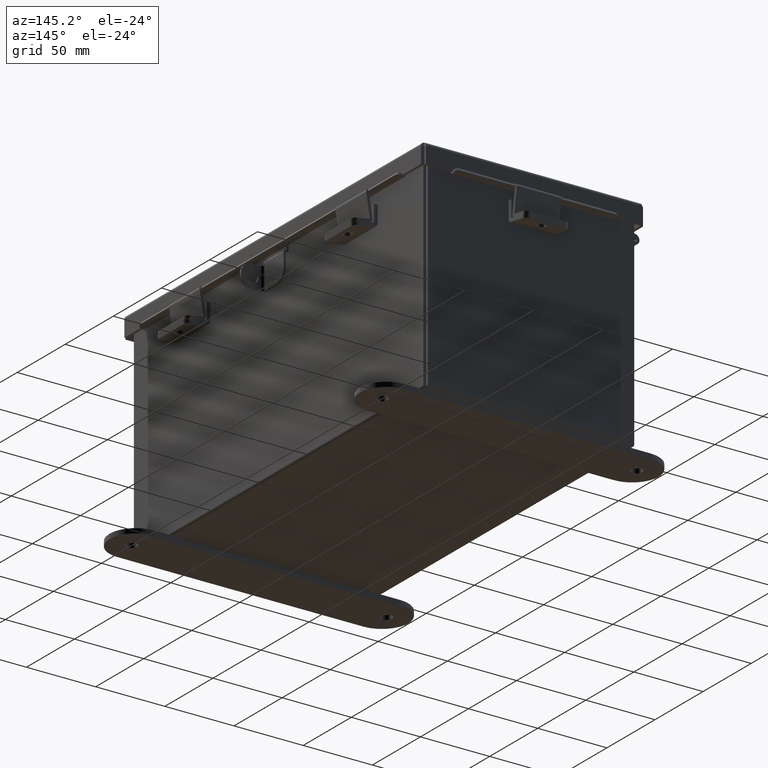
[diagram: clean part render]
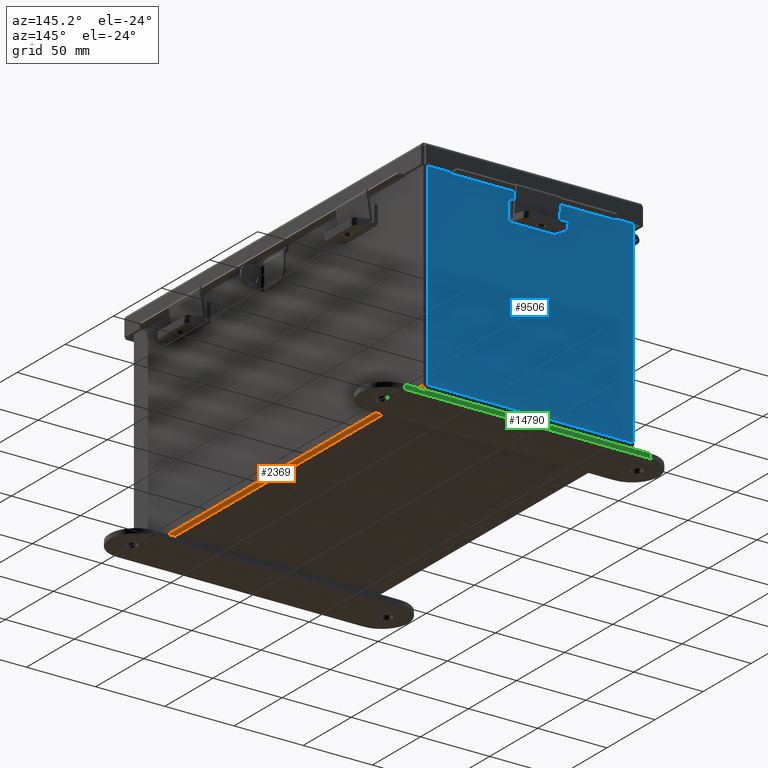
[diagram: same view with three faces highlighted in distinct colors, each labeled with its STEP entity id]
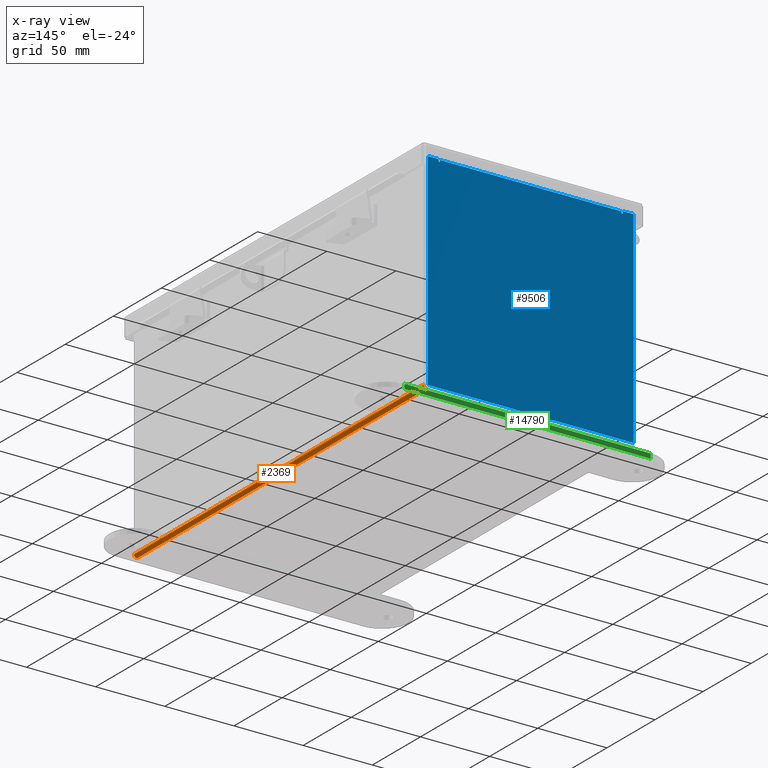
[diagram: x-ray of the same camera — body ghosted, the three highlighted faces saturated]
A machine part, auxiliary view with three faces highlighted in distinct colors.
The next image is the same camera in x-ray (body ghosted, the three faces saturated) — at least one of them is partly hidden behind the body in this view.
Their STEP definitions:

[orange] entity #2369 — the highlighted cylindrical surface (edge-blend (fillet) strip) has radius 2.2276 mm, axis along (0, 1, 0).
#221 = VECTOR ( 'NONE', #623, 39.37007874015748100 ) ;
#623 = DIRECTION ( 'NONE',  ( -0.0000000000000000000, -1.000000000000000000, -8.208677865577646300E-017 ) ) ;
#1322 = CYLINDRICAL_SURFACE ( 'NONE', #5812, 0.08770000000000026400 ) ;
#1637 = DIRECTION ( 'NONE',  ( 1.000000000000000000, 0.0000000000000000000, -3.455694262224952200E-015 ) ) ;
#2092 = CIRCLE ( 'NONE', #14214, 0.08770000000000009700 ) ;
#2136 = ORIENTED_EDGE ( 'NONE', *, *, #14135, .F. ) ;
#2241 = ORIENTED_EDGE ( 'NONE', *, *, #9163, .T. ) ;
#2369 = ADVANCED_FACE ( 'NONE', ( #10514 ), #1322, .T. ) ;
#3066 = LINE ( 'NONE', #5351, #8821 ) ;
#3315 = VERTEX_POINT ( 'NONE', #14533 ) ;
#3961 = ORIENTED_EDGE ( 'NONE', *, *, #11479, .F. ) ;
#5351 = CARTESIAN_POINT ( 'NONE',  ( 2.999999999999999600, -5.925300000000000000, 0.01299999999999984300 ) ) ;
#5717 = VERTEX_POINT ( 'NONE', #10044 ) ;
#5812 = AXIS2_PLACEMENT_3D ( 'NONE', #9698, #13142, #1637 ) ;
#5961 = CARTESIAN_POINT ( 'NONE',  ( 2.912299999999999200, 5.925299999999997300, -0.07469999999999918400 ) ) ;
#6080 = VERTEX_POINT ( 'NONE', #5961 ) ;
#6344 = LINE ( 'NONE', #8620, #221 ) ;
#6470 = DIRECTION ( 'NONE',  ( -0.0000000000000000000, -1.000000000000000000, -8.208677865577646300E-017 ) ) ;
#6500 = DIRECTION ( 'NONE',  ( -1.593066959076850500E-031, -1.000000000000000000, -4.610480471308228800E-017 ) ) ;
#6539 = DIRECTION ( 'NONE',  ( 0.0000000000000000000, 1.000000000000000000, 8.208677865577646300E-017 ) ) ;
#7504 = ORIENTED_EDGE ( 'NONE', *, *, #10396, .F. ) ;
#8620 = CARTESIAN_POINT ( 'NONE',  ( 2.912299999999999200, 5.925300000000000000, -0.07469999999999918400 ) ) ;
#8821 = VECTOR ( 'NONE', #6500, 39.37007874015748100 ) ;
#9151 = AXIS2_PLACEMENT_3D ( 'NONE', #13462, #6539, #14599 ) ;
#9163 = EDGE_CURVE ( 'NONE', #3315, #5717, #3066, .T. ) ;
#9698 = CARTESIAN_POINT ( 'NONE',  ( 2.912299999999999200, 5.925300000000000000, 0.01300000000000091900 ) ) ;
#10044 = CARTESIAN_POINT ( 'NONE',  ( 2.999999999999999600, -5.925300000000000000, 0.01299999999999963700 ) ) ;
#10396 = EDGE_CURVE ( 'NONE', #3315, #6080, #12717, .T. ) ;
#10514 = FACE_OUTER_BOUND ( 'NONE', #13195, .T. ) ;
#11479 = EDGE_CURVE ( 'NONE', #6080, #13508, #6344, .T. ) ;
#12001 = CARTESIAN_POINT ( 'NONE',  ( 2.912299999999999200, -5.925300000000000000, -0.07470000000000000300 ) ) ;
#12717 = CIRCLE ( 'NONE', #9151, 0.08770000000000009700 ) ;
#13142 = DIRECTION ( 'NONE',  ( 0.0000000000000000000, 1.000000000000000000, 8.208677865577646300E-017 ) ) ;
#13195 = EDGE_LOOP ( 'NONE', ( #3961, #7504, #2241, #2136 ) ) ;
#13389 = CARTESIAN_POINT ( 'NONE',  ( 2.912299999999999200, -5.925300000000000000, 0.01299999999999994600 ) ) ;
#13462 = CARTESIAN_POINT ( 'NONE',  ( 2.912299999999999200, 5.925299999999997300, 0.01300000000000091900 ) ) ;
#13508 = VERTEX_POINT ( 'NONE', #12001 ) ;
#14135 = EDGE_CURVE ( 'NONE', #13508, #5717, #2092, .T. ) ;
#14214 = AXIS2_PLACEMENT_3D ( 'NONE', #13389, #6470, #14534 ) ;
#14533 = CARTESIAN_POINT ( 'NONE',  ( 2.999999999999999600, 5.925299999999998200, 0.01300000000000039000 ) ) ;
#14534 = DIRECTION ( 'NONE',  ( 0.0000000000000000000, 0.0000000000000000000, 1.000000000000000000 ) ) ;
#14599 = DIRECTION ( 'NONE',  ( 0.0000000000000000000, 0.0000000000000000000, 1.000000000000000000 ) ) ;

[blue] entity #9506 — the highlighted planar face has unit normal (0, -1, 0).
#25 = CIRCLE ( 'NONE', #11473, 0.01867500000000003900 ) ;
#278 = ORIENTED_EDGE ( 'NONE', *, *, #5135, .F. ) ;
#792 = CARTESIAN_POINT ( 'NONE',  ( -2.582299999999999600, 1.092739197465705300E-015, 2.912299999999999200 ) ) ;
#801 = DIRECTION ( 'NONE',  ( 0.0000000000000000000, 0.0000000000000000000, -1.000000000000000000 ) ) ;
#1093 = DIRECTION ( 'NONE',  ( 0.0000000000000000000, 0.0000000000000000000, 1.000000000000000000 ) ) ;
#1202 = DIRECTION ( 'NONE',  ( -1.000000000000000000, -0.0000000000000000000, -0.0000000000000000000 ) ) ;
#1438 = ORIENTED_EDGE ( 'NONE', *, *, #4869, .T. ) ;
#1672 = CARTESIAN_POINT ( 'NONE',  ( 2.925300000000000500, 0.0000000000000000000, -2.925300000000000000 ) ) ;
#1677 = ORIENTED_EDGE ( 'NONE', *, *, #4958, .F. ) ;
#1883 = VECTOR ( 'NONE', #1093, 39.37007874015748100 ) ;
#1925 = CARTESIAN_POINT ( 'NONE',  ( -2.925299999999999600, 0.0000000000000000000, 2.925300000000000500 ) ) ;
#1932 = VECTOR ( 'NONE', #9576, 39.37007874015748100 ) ;
#2038 = CIRCLE ( 'NONE', #14063, 0.01867500000000003900 ) ;
#2268 = VERTEX_POINT ( 'NONE', #2597 ) ;
#2283 = LINE ( 'NONE', #13026, #1932 ) ;
#2375 = LINE ( 'NONE', #9549, #11204 ) ;
#2384 = LINE ( 'NONE', #10664, #11220 ) ;
#2597 = CARTESIAN_POINT ( 'NONE',  ( -2.582299999999999600, 0.0000000000000000000, 2.874949999999999200 ) ) ;
#2602 = DIRECTION ( 'NONE',  ( 1.000000000000000000, 0.0000000000000000000, 0.0000000000000000000 ) ) ;
#2828 = DIRECTION ( 'NONE',  ( -0.0000000000000000000, 1.000000000000000000, -0.0000000000000000000 ) ) ;
#3064 = DIRECTION ( 'NONE',  ( 1.000000000000000000, 0.0000000000000000000, 0.0000000000000000000 ) ) ;
#3280 = LINE ( 'NONE', #10809, #5992 ) ;
#3542 = DIRECTION ( 'NONE',  ( -0.0000000000000000000, 1.000000000000000000, -0.0000000000000000000 ) ) ;
#3646 = CARTESIAN_POINT ( 'NONE',  ( -2.619649999999999600, 0.0000000000000000000, 2.925300000000000500 ) ) ;
#3652 = ORIENTED_EDGE ( 'NONE', *, *, #5223, .T. ) ;
#3740 = DIRECTION ( 'NONE',  ( -1.085143195099989400E-014, 0.0000000000000000000, -1.000000000000000000 ) ) ;
#3757 = EDGE_CURVE ( 'NONE', #9655, #4105, #2283, .T. ) ;
#3942 = EDGE_CURVE ( 'NONE', #9018, #14757, #11660, .T. ) ;
#4042 = EDGE_LOOP ( 'NONE', ( #278, #4252, #1677, #1438, #8046, #14686, #6107, #14395, #11702, #3652, #4432, #12289 ) ) ;
#4094 = CARTESIAN_POINT ( 'NONE',  ( -2.582299999999999600, 0.0000000000000000000, 0.0000000000000000000 ) ) ;
#4105 = VERTEX_POINT ( 'NONE', #1672 ) ;
#4252 = ORIENTED_EDGE ( 'NONE', *, *, #5792, .F. ) ;
#4404 = VECTOR ( 'NONE', #10884, 39.37007874015748100 ) ;
#4432 = ORIENTED_EDGE ( 'NONE', *, *, #6660, .T. ) ;
#4805 = CARTESIAN_POINT ( 'NONE',  ( 2.582300000000000500, 0.0000000000000000000, 2.874949999999999200 ) ) ;
#4869 = EDGE_CURVE ( 'NONE', #12002, #14918, #7473, .T. ) ;
#4958 = EDGE_CURVE ( 'NONE', #12002, #2268, #9445, .T. ) ;
#4988 = DIRECTION ( 'NONE',  ( -0.0000000000000000000, -0.0000000000000000000, 1.000000000000000000 ) ) ;
#5044 = DIRECTION ( 'NONE',  ( 0.0000000000000000000, -0.0000000000000000000, -1.000000000000000000 ) ) ;
#5135 = EDGE_CURVE ( 'NONE', #11971, #12317, #10341, .T. ) ;
#5223 = EDGE_CURVE ( 'NONE', #4105, #6304, #9625, .T. ) ;
#5419 = CARTESIAN_POINT ( 'NONE',  ( -2.925299999999999600, 0.0000000000000000000, 2.925300000000000500 ) ) ;
#5792 = EDGE_CURVE ( 'NONE', #2268, #11971, #2038, .T. ) ;
#5917 = CARTESIAN_POINT ( 'NONE',  ( 2.582300000000000500, 0.0000000000000000000, 2.912299999999999200 ) ) ;
#5992 = VECTOR ( 'NONE', #14271, 39.37007874015748100 ) ;
#6107 = ORIENTED_EDGE ( 'NONE', *, *, #3942, .F. ) ;
#6110 = EDGE_CURVE ( 'NONE', #11011, #12317, #2384, .T. ) ;
#6304 = VERTEX_POINT ( 'NONE', #7480 ) ;
#6522 = CARTESIAN_POINT ( 'NONE',  ( -2.619649999999999600, 0.0000000000000000000, 2.874949999999999200 ) ) ;
#6660 = EDGE_CURVE ( 'NONE', #6304, #11011, #2375, .T. ) ;
#7364 = CARTESIAN_POINT ( 'NONE',  ( 2.619650000000000500, 0.0000000000000000000, 2.925300000000000500 ) ) ;
#7473 = LINE ( 'NONE', #14296, #4404 ) ;
#7480 = CARTESIAN_POINT ( 'NONE',  ( -2.925299999999999600, 0.0000000000000000000, -2.925300000000000000 ) ) ;
#7674 = EDGE_CURVE ( 'NONE', #13362, #14918, #3280, .T. ) ;
#7727 = AXIS2_PLACEMENT_3D ( 'NONE', #10786, #11944, #5044 ) ;
#7987 = CARTESIAN_POINT ( 'NONE',  ( -2.619649999999999600, 0.0000000000000000000, 0.0000000000000000000 ) ) ;
#8046 = ORIENTED_EDGE ( 'NONE', *, *, #7674, .F. ) ;
#8345 = EDGE_CURVE ( 'NONE', #14757, #13362, #25, .T. ) ;
#8550 = LINE ( 'NONE', #1925, #14319 ) ;
#9018 = VERTEX_POINT ( 'NONE', #7364 ) ;
#9224 = CARTESIAN_POINT ( 'NONE',  ( -2.925299999999999600, 0.0000000000000000000, -2.925300000000000000 ) ) ;
#9445 = LINE ( 'NONE', #4094, #12528 ) ;
#9506 = ADVANCED_FACE ( 'NONE', ( #10271 ), #9615, .F. ) ;
#9549 = CARTESIAN_POINT ( 'NONE',  ( -2.925299999999999600, 0.0000000000000000000, 2.925300000000000500 ) ) ;
#9576 = DIRECTION ( 'NONE',  ( 0.0000000000000000000, 0.0000000000000000000, -1.000000000000000000 ) ) ;
#9615 = PLANE ( 'NONE',  #7727 ) ;
#9625 = LINE ( 'NONE', #9224, #12706 ) ;
#9655 = VERTEX_POINT ( 'NONE', #11031 ) ;
#9727 = CARTESIAN_POINT ( 'NONE',  ( 2.600975000000000500, 0.0000000000000000000, 2.874949999999999200 ) ) ;
#10271 = FACE_OUTER_BOUND ( 'NONE', #4042, .T. ) ;
#10341 = LINE ( 'NONE', #7987, #1883 ) ;
#10384 = EDGE_CURVE ( 'NONE', #9018, #9655, #8550, .T. ) ;
#10450 = CARTESIAN_POINT ( 'NONE',  ( -2.600974999999999600, 0.0000000000000000000, 2.874949999999999200 ) ) ;
#10664 = CARTESIAN_POINT ( 'NONE',  ( -2.925299999999999600, 0.0000000000000000000, 2.925300000000000500 ) ) ;
#10786 = CARTESIAN_POINT ( 'NONE',  ( 0.0000000000000000000, 0.0000000000000000000, 0.0000000000000000000 ) ) ;
#10809 = CARTESIAN_POINT ( 'NONE',  ( 2.582300000000000500, 0.0000000000000000000, 0.0000000000000000000 ) ) ;
#10884 = DIRECTION ( 'NONE',  ( 1.000000000000000000, 0.0000000000000000000, 0.0000000000000000000 ) ) ;
#10889 = DIRECTION ( 'NONE',  ( 0.0000000000000000000, 0.0000000000000000000, -1.000000000000000000 ) ) ;
#11011 = VERTEX_POINT ( 'NONE', #5419 ) ;
#11031 = CARTESIAN_POINT ( 'NONE',  ( 2.925300000000000500, 0.0000000000000000000, 2.925300000000000500 ) ) ;
#11204 = VECTOR ( 'NONE', #4988, 39.37007874015748100 ) ;
#11220 = VECTOR ( 'NONE', #2602, 39.37007874015748100 ) ;
#11473 = AXIS2_PLACEMENT_3D ( 'NONE', #9727, #2828, #10889 ) ;
#11604 = DIRECTION ( 'NONE',  ( 0.0000000000000000000, 0.0000000000000000000, -1.000000000000000000 ) ) ;
#11660 = LINE ( 'NONE', #11801, #12025 ) ;
#11702 = ORIENTED_EDGE ( 'NONE', *, *, #3757, .T. ) ;
#11801 = CARTESIAN_POINT ( 'NONE',  ( 2.619649999999969400, 0.0000000000000000000, -2.841121913410833900E-014 ) ) ;
#11944 = DIRECTION ( 'NONE',  ( 0.0000000000000000000, -1.000000000000000000, 0.0000000000000000000 ) ) ;
#11971 = VERTEX_POINT ( 'NONE', #6522 ) ;
#12002 = VERTEX_POINT ( 'NONE', #792 ) ;
#12025 = VECTOR ( 'NONE', #3740, 39.37007874015748100 ) ;
#12289 = ORIENTED_EDGE ( 'NONE', *, *, #6110, .T. ) ;
#12317 = VERTEX_POINT ( 'NONE', #3646 ) ;
#12528 = VECTOR ( 'NONE', #801, 39.37007874015748100 ) ;
#12706 = VECTOR ( 'NONE', #1202, 39.37007874015748100 ) ;
#13026 = CARTESIAN_POINT ( 'NONE',  ( 2.925300000000000500, 0.0000000000000000000, 2.925300000000000500 ) ) ;
#13362 = VERTEX_POINT ( 'NONE', #4805 ) ;
#13689 = CARTESIAN_POINT ( 'NONE',  ( 2.619650000000000500, 0.0000000000000000000, 2.874949999999999200 ) ) ;
#14063 = AXIS2_PLACEMENT_3D ( 'NONE', #10450, #3542, #11604 ) ;
#14271 = DIRECTION ( 'NONE',  ( 0.0000000000000000000, 0.0000000000000000000, 1.000000000000000000 ) ) ;
#14296 = CARTESIAN_POINT ( 'NONE',  ( -2.582299999999999600, 1.092739197465705300E-015, 2.912299999999999200 ) ) ;
#14319 = VECTOR ( 'NONE', #3064, 39.37007874015748100 ) ;
#14395 = ORIENTED_EDGE ( 'NONE', *, *, #10384, .T. ) ;
#14686 = ORIENTED_EDGE ( 'NONE', *, *, #8345, .F. ) ;
#14757 = VERTEX_POINT ( 'NONE', #13689 ) ;
#14918 = VERTEX_POINT ( 'NONE', #5917 ) ;

[green] entity #14790 — the highlighted planar face has unit normal (-0, 1, -0).
#613 = VECTOR ( 'NONE', #3756, 39.37007874015748100 ) ;
#787 = LINE ( 'NONE', #11112, #3468 ) ;
#1441 = VERTEX_POINT ( 'NONE', #1504 ) ;
#1504 = CARTESIAN_POINT ( 'NONE',  ( -3.499999999999998700, -0.3379059350503874600, -0.1345000000000000100 ) ) ;
#1800 = ORIENTED_EDGE ( 'NONE', *, *, #5691, .F. ) ;
#2549 = CARTESIAN_POINT ( 'NONE',  ( 3.499999999999998700, -0.3379059350503883000, -0.1345000000000000100 ) ) ;
#2604 = CARTESIAN_POINT ( 'NONE',  ( -3.499999999999998700, -0.3379059350503874600, -0.1345000000000000100 ) ) ;
#3199 = EDGE_CURVE ( 'NONE', #11060, #11998, #11778, .T. ) ;
#3318 = FACE_OUTER_BOUND ( 'NONE', #7023, .T. ) ;
#3468 = VECTOR ( 'NONE', #6462, 39.37007874015748100 ) ;
#3756 = DIRECTION ( 'NONE',  ( 1.000000000000000000, -1.170791997284684700E-016, 0.0000000000000000000 ) ) ;
#3867 = VERTEX_POINT ( 'NONE', #8617 ) ;
#4519 = CARTESIAN_POINT ( 'NONE',  ( -3.499999999999998700, -0.3379059350503874600, -0.1345000000000000100 ) ) ;
#4828 = DIRECTION ( 'NONE',  ( 1.000000000000000000, -1.170791997284684700E-016, 0.0000000000000000000 ) ) ;
#5435 = EDGE_CURVE ( 'NONE', #1441, #11060, #9808, .T. ) ;
#5554 = CARTESIAN_POINT ( 'NONE',  ( 3.499999999999998700, -0.3379059350503883000, -0.1345000000000000100 ) ) ;
#5611 = AXIS2_PLACEMENT_3D ( 'NONE', #4519, #6833, #14889 ) ;
#5691 = EDGE_CURVE ( 'NONE', #1441, #3867, #787, .T. ) ;
#6462 = DIRECTION ( 'NONE',  ( 0.0000000000000000000, 0.0000000000000000000, 1.000000000000000000 ) ) ;
#6577 = CARTESIAN_POINT ( 'NONE',  ( 3.499999999999998700, -0.3379059350503883000, 0.0000000000000000000 ) ) ;
#6833 = DIRECTION ( 'NONE',  ( -1.170791997284684700E-016, -1.000000000000000000, 0.0000000000000000000 ) ) ;
#7023 = EDGE_LOOP ( 'NONE', ( #13235, #1800, #8159, #14001 ) ) ;
#8159 = ORIENTED_EDGE ( 'NONE', *, *, #5435, .T. ) ;
#8617 = CARTESIAN_POINT ( 'NONE',  ( -3.499999999999998700, -0.3379059350503874600, 0.0000000000000000000 ) ) ;
#9082 = PLANE ( 'NONE',  #5611 ) ;
#9808 = LINE ( 'NONE', #2604, #613 ) ;
#9837 = LINE ( 'NONE', #14002, #10190 ) ;
#10069 = EDGE_CURVE ( 'NONE', #3867, #11998, #9837, .T. ) ;
#10190 = VECTOR ( 'NONE', #4828, 39.37007874015748100 ) ;
#11054 = VECTOR ( 'NONE', #12943, 39.37007874015748100 ) ;
#11060 = VERTEX_POINT ( 'NONE', #5554 ) ;
#11112 = CARTESIAN_POINT ( 'NONE',  ( -3.499999999999998700, -0.3379059350503874600, -0.1345000000000000100 ) ) ;
#11778 = LINE ( 'NONE', #2549, #11054 ) ;
#11998 = VERTEX_POINT ( 'NONE', #6577 ) ;
#12943 = DIRECTION ( 'NONE',  ( 0.0000000000000000000, 0.0000000000000000000, 1.000000000000000000 ) ) ;
#13235 = ORIENTED_EDGE ( 'NONE', *, *, #10069, .F. ) ;
#14001 = ORIENTED_EDGE ( 'NONE', *, *, #3199, .T. ) ;
#14002 = CARTESIAN_POINT ( 'NONE',  ( -3.499999999999998700, -0.3379059350503874600, 0.0000000000000000000 ) ) ;
#14790 = ADVANCED_FACE ( 'NONE', ( #3318 ), #9082, .T. ) ;
#14889 = DIRECTION ( 'NONE',  ( 1.000000000000000000, -1.170791997284684700E-016, 0.0000000000000000000 ) ) ;